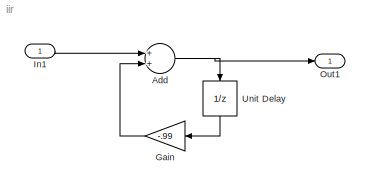
MODEL iir
KIND model
BLOCK [Sum] Add
  InputSameDT = off
  OutDataTypeStr = Inherit: Inherit via internal rule
  Ports = [2, 1]
  SID = 2
  SaturateOnIntegerOverflow = off
BLOCK [Gain] Gain
  Gain = -.99
  OutDataTypeStr = Inherit: Inherit via internal rule
  ParamDataTypeStr = Inherit: Inherit via internal rule
  SID = 3
  SaturateOnIntegerOverflow = off
BLOCK [Inport] In1
  IconDisplay = Port number
  SID = 1
BLOCK [Outport] Out1
  IconDisplay = Port number
  SID = 5
BLOCK [UnitDelay] Unit Delay
  SID = 4
NET Add:1 -> Out1:1, Unit Delay:1
LINE Gain:1 -> Add:2
LINE In1:1 -> Add:1
LINE Unit Delay:1 -> Gain:1
note: NET lines group one-source signal fan-out (src -> all destinations, sorted); 1:1 wires keep LINE
